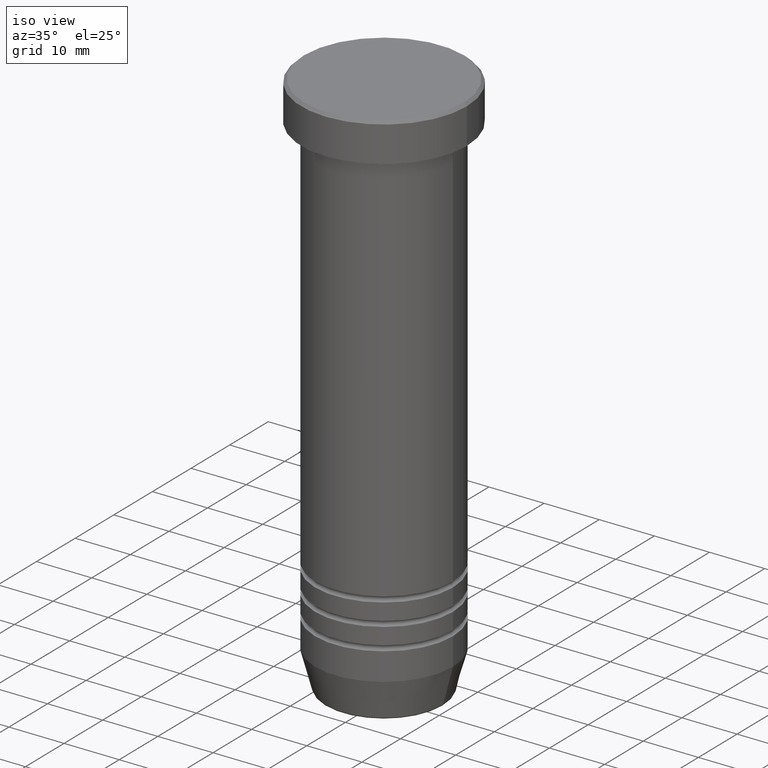
[diagram: clean part render]
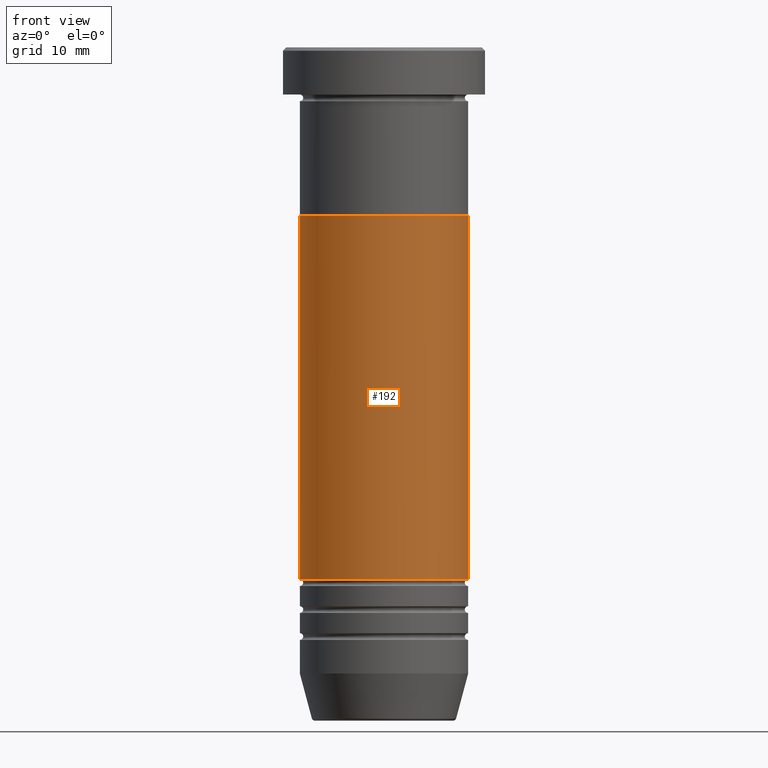
[diagram: tour spotlight — one face highlighted and labeled with its STEP entity id]
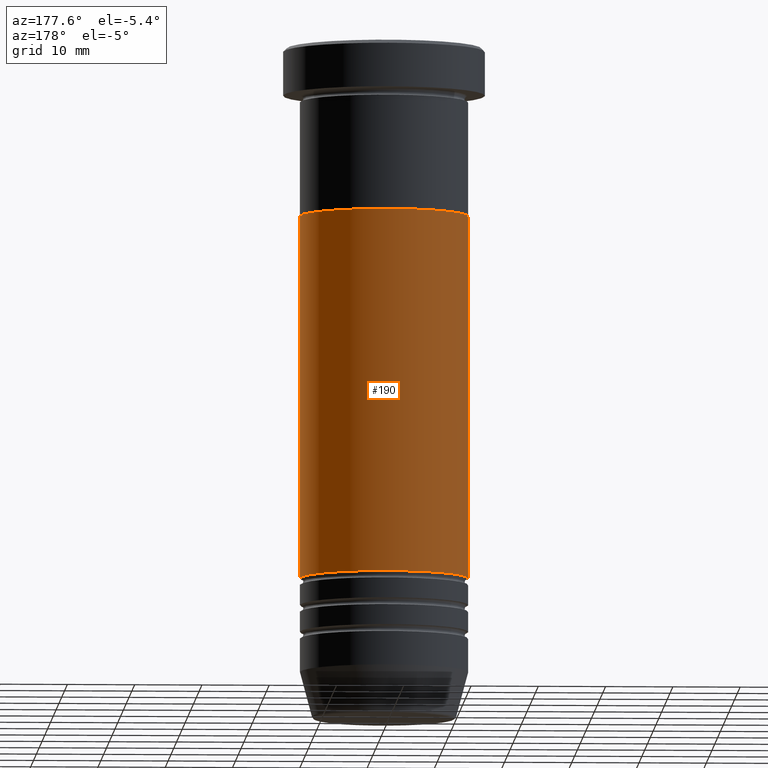
[diagram: tour spotlight — one face highlighted and labeled with its STEP entity id]
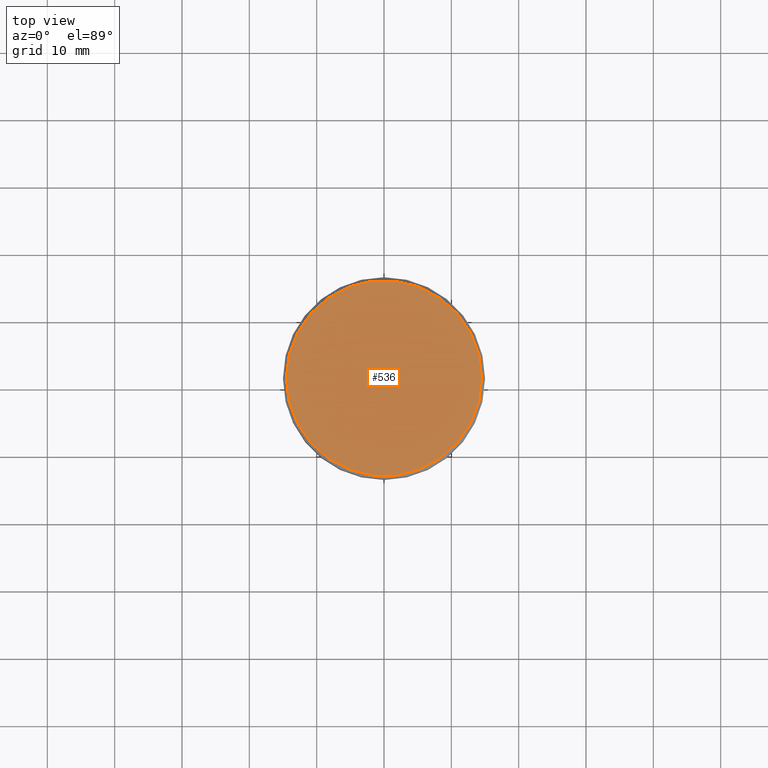
[diagram: tour spotlight — one face highlighted and labeled with its STEP entity id]
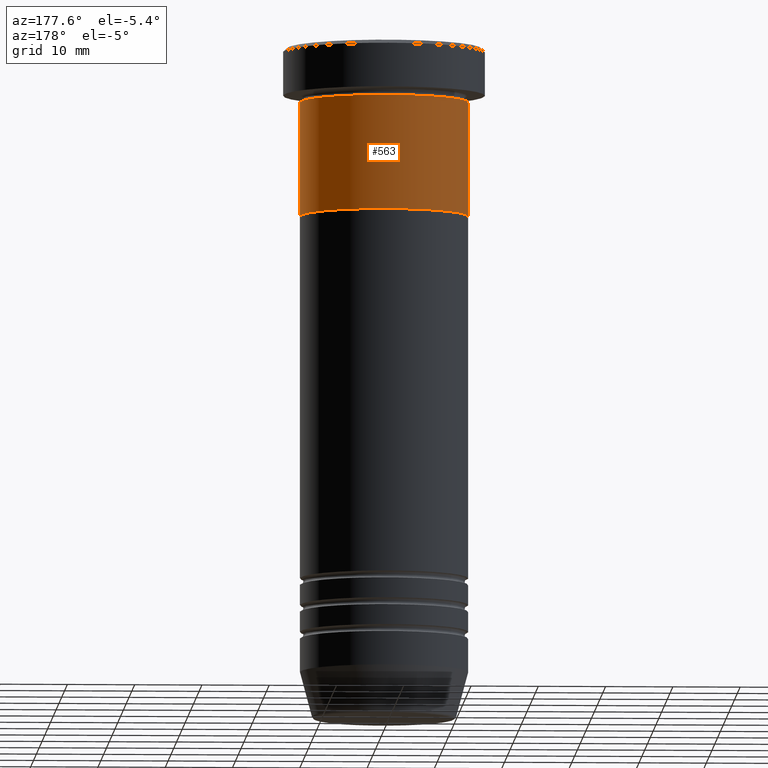
[diagram: tour spotlight — one face highlighted and labeled with its STEP entity id]
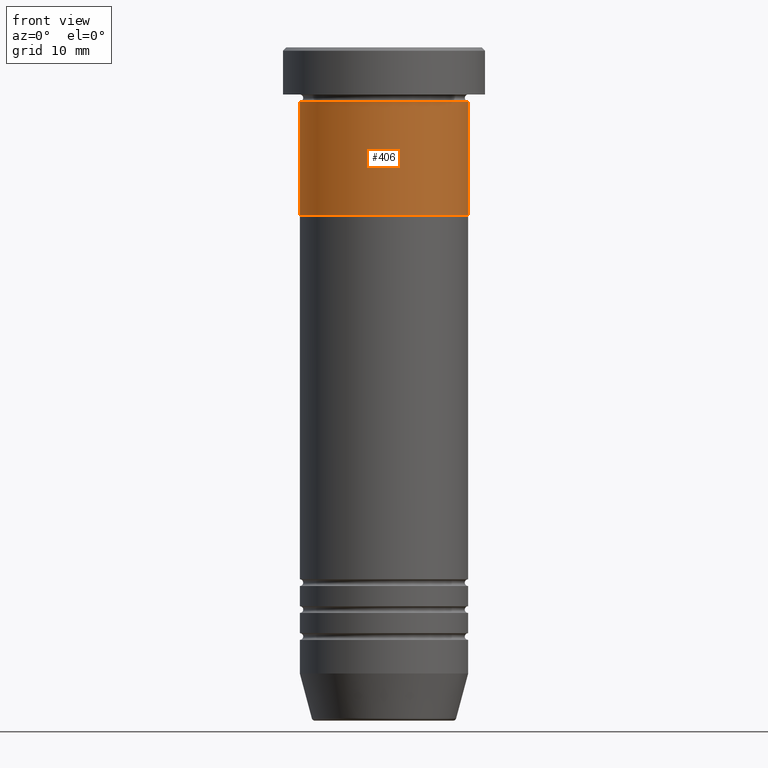
[diagram: tour spotlight — one face highlighted and labeled with its STEP entity id]
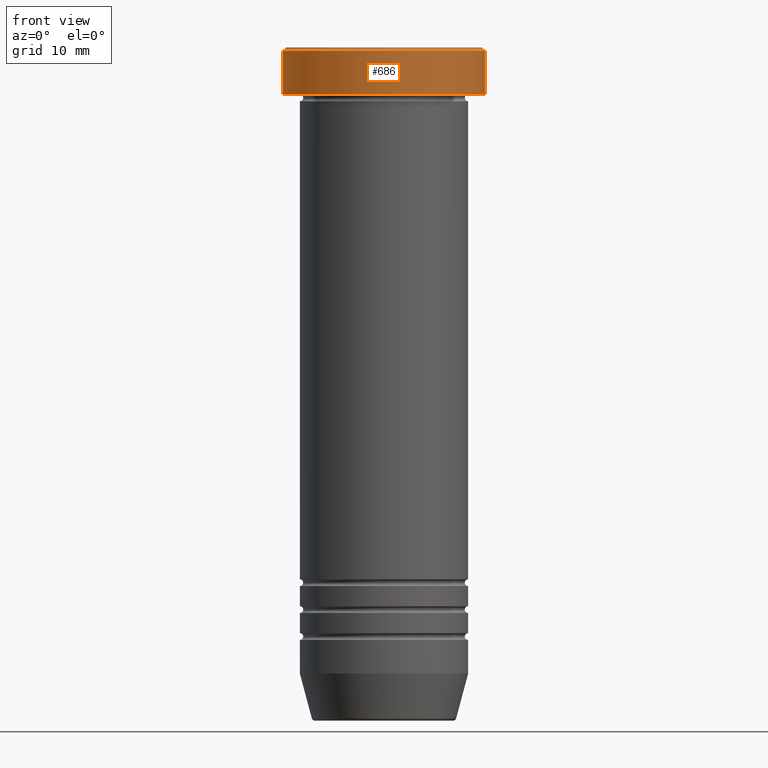
[diagram: tour spotlight — one face highlighted and labeled with its STEP entity id]
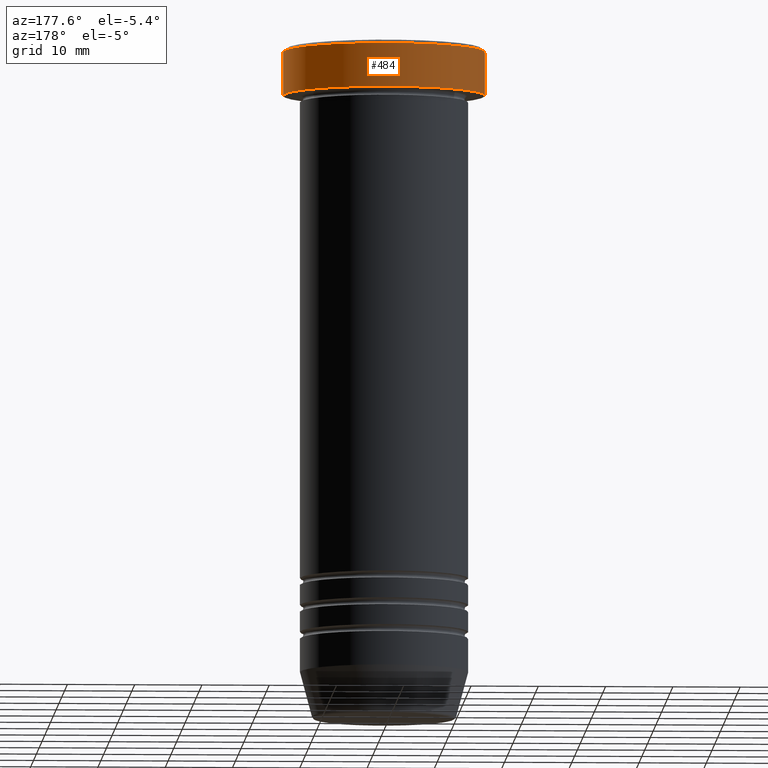
[diagram: tour spotlight — one face highlighted and labeled with its STEP entity id]
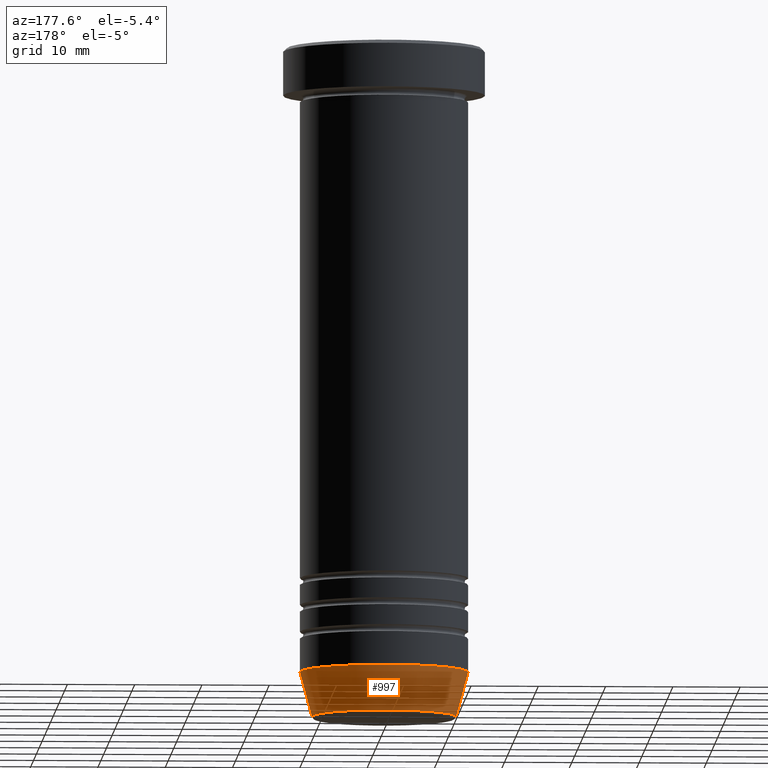
[diagram: tour spotlight — one face highlighted and labeled with its STEP entity id]
A machine part: a face-by-face anatomy tour. The part has 39 B-rep faces; the first image is the clean iso view, then the 8 largest visible faces are spotlighted one at a time (largest first), each with its STEP entity span.

Face 1 — front view, entity #192. In plain terms, the highlighted cylindrical surface (partial cylindrical patch) has radius 12.5 mm, axis along (-0, -0, 1).
Definition (entity closure, byte-faithful):
#16 = CARTESIAN_POINT ( 'NONE',  ( -12.49999999999999645, 1.530808498934191127E-15, 0.000000000000000000 ) ) ;
#29 = CARTESIAN_POINT ( 'NONE',  ( 12.50000000000000000, 0.000000000000000000, -25.00000000000000000 ) ) ;
#44 = VERTEX_POINT ( 'NONE', #85 ) ;
#85 = CARTESIAN_POINT ( 'NONE',  ( -12.49999999999999289, 1.530808498934190930E-15, -79.00000000000000000 ) ) ;
#87 = VERTEX_POINT ( 'NONE', #244 ) ;
#107 = AXIS2_PLACEMENT_3D ( 'NONE', #309, #564, #893 ) ;
#121 = DIRECTION ( 'NONE',  ( -0.000000000000000000, -0.000000000000000000, 1.000000000000000000 ) ) ;
#124 = EDGE_LOOP ( 'NONE', ( #532, #792, #690, #999 ) ) ;
#149 = EDGE_CURVE ( 'NONE', #44, #330, #362, .T. ) ;
#173 = VERTEX_POINT ( 'NONE', #29 ) ;
#192 = ADVANCED_FACE ( 'NONE', ( #602 ), #696, .T. ) ;
#197 = VECTOR ( 'NONE', #1058, 1000.000000000000000 ) ;
#208 = DIRECTION ( 'NONE',  ( 1.000000000000000000, 0.000000000000000000, 0.000000000000000000 ) ) ;
#232 = CARTESIAN_POINT ( 'NONE',  ( 12.49999999999999645, 0.000000000000000000, 0.000000000000000000 ) ) ;
#240 = LINE ( 'NONE', #16, #197 ) ;
#244 = CARTESIAN_POINT ( 'NONE',  ( -12.50000000000000000, 1.530808498934191521E-15, -25.00000000000000000 ) ) ;
#289 = CARTESIAN_POINT ( 'NONE',  ( 0.000000000000000000, 0.000000000000000000, 0.000000000000000000 ) ) ;
#309 = CARTESIAN_POINT ( 'NONE',  ( 0.000000000000000000, 0.000000000000000000, -25.00000000000000000 ) ) ;
#310 = EDGE_CURVE ( 'NONE', #330, #173, #803, .T. ) ;
#330 = VERTEX_POINT ( 'NONE', #1061 ) ;
#347 = EDGE_CURVE ( 'NONE', #87, #173, #470, .T. ) ;
#362 = CIRCLE ( 'NONE', #935, 12.49999999999999289 ) ;
#400 = DIRECTION ( 'NONE',  ( -0.000000000000000000, -0.000000000000000000, 1.000000000000000000 ) ) ;
#437 = CARTESIAN_POINT ( 'NONE',  ( 0.000000000000000000, 0.000000000000000000, -79.00000000000000000 ) ) ;
#465 = EDGE_CURVE ( 'NONE', #44, #87, #240, .T. ) ;
#470 = CIRCLE ( 'NONE', #107, 12.50000000000000000 ) ;
#532 = ORIENTED_EDGE ( 'NONE', *, *, #465, .F. ) ;
#564 = DIRECTION ( 'NONE',  ( -0.000000000000000000, -0.000000000000000000, 1.000000000000000000 ) ) ;
#602 = FACE_OUTER_BOUND ( 'NONE', #124, .T. ) ;
#690 = ORIENTED_EDGE ( 'NONE', *, *, #310, .T. ) ;
#696 = CYLINDRICAL_SURFACE ( 'NONE', #760, 12.49999999999999645 ) ;
#760 = AXIS2_PLACEMENT_3D ( 'NONE', #289, #121, #781 ) ;
#774 = DIRECTION ( 'NONE',  ( -0.000000000000000000, -0.000000000000000000, 1.000000000000000000 ) ) ;
#781 = DIRECTION ( 'NONE',  ( 1.000000000000000000, 0.000000000000000000, 0.000000000000000000 ) ) ;
#792 = ORIENTED_EDGE ( 'NONE', *, *, #149, .T. ) ;
#803 = LINE ( 'NONE', #232, #967 ) ;
#893 = DIRECTION ( 'NONE',  ( 1.000000000000000000, 0.000000000000000000, 0.000000000000000000 ) ) ;
#935 = AXIS2_PLACEMENT_3D ( 'NONE', #437, #774, #208 ) ;
#967 = VECTOR ( 'NONE', #400, 1000.000000000000000 ) ;
#999 = ORIENTED_EDGE ( 'NONE', *, *, #347, .F. ) ;
#1058 = DIRECTION ( 'NONE',  ( -0.000000000000000000, -0.000000000000000000, 1.000000000000000000 ) ) ;
#1061 = CARTESIAN_POINT ( 'NONE',  ( 12.49999999999999289, 0.000000000000000000, -79.00000000000000000 ) ) ;

Face 2 — auxiliary view, entity #190. In plain terms, the highlighted cylindrical surface (partial cylindrical patch) has radius 12.5 mm, axis along (-0, -0, 1).
Definition (entity closure, byte-faithful):
#16 = CARTESIAN_POINT ( 'NONE',  ( -12.49999999999999645, 1.530808498934191127E-15, 0.000000000000000000 ) ) ;
#19 = DIRECTION ( 'NONE',  ( -0.000000000000000000, -0.000000000000000000, 1.000000000000000000 ) ) ;
#29 = CARTESIAN_POINT ( 'NONE',  ( 12.50000000000000000, 0.000000000000000000, -25.00000000000000000 ) ) ;
#44 = VERTEX_POINT ( 'NONE', #85 ) ;
#69 = AXIS2_PLACEMENT_3D ( 'NONE', #305, #203, #352 ) ;
#85 = CARTESIAN_POINT ( 'NONE',  ( -12.49999999999999289, 1.530808498934190930E-15, -79.00000000000000000 ) ) ;
#87 = VERTEX_POINT ( 'NONE', #244 ) ;
#133 = ORIENTED_EDGE ( 'NONE', *, *, #842, .F. ) ;
#162 = CIRCLE ( 'NONE', #762, 12.49999999999999289 ) ;
#173 = VERTEX_POINT ( 'NONE', #29 ) ;
#190 = ADVANCED_FACE ( 'NONE', ( #636 ), #683, .T. ) ;
#197 = VECTOR ( 'NONE', #1058, 1000.000000000000000 ) ;
#203 = DIRECTION ( 'NONE',  ( -0.000000000000000000, -0.000000000000000000, 1.000000000000000000 ) ) ;
#229 = ORIENTED_EDGE ( 'NONE', *, *, #465, .T. ) ;
#232 = CARTESIAN_POINT ( 'NONE',  ( 12.49999999999999645, 0.000000000000000000, 0.000000000000000000 ) ) ;
#240 = LINE ( 'NONE', #16, #197 ) ;
#244 = CARTESIAN_POINT ( 'NONE',  ( -12.50000000000000000, 1.530808498934191521E-15, -25.00000000000000000 ) ) ;
#261 = CARTESIAN_POINT ( 'NONE',  ( 0.000000000000000000, 0.000000000000000000, -25.00000000000000000 ) ) ;
#305 = CARTESIAN_POINT ( 'NONE',  ( 0.000000000000000000, 0.000000000000000000, 0.000000000000000000 ) ) ;
#310 = EDGE_CURVE ( 'NONE', #330, #173, #803, .T. ) ;
#313 = AXIS2_PLACEMENT_3D ( 'NONE', #261, #19, #513 ) ;
#330 = VERTEX_POINT ( 'NONE', #1061 ) ;
#346 = ORIENTED_EDGE ( 'NONE', *, *, #573, .T. ) ;
#352 = DIRECTION ( 'NONE',  ( 1.000000000000000000, 0.000000000000000000, 0.000000000000000000 ) ) ;
#400 = DIRECTION ( 'NONE',  ( -0.000000000000000000, -0.000000000000000000, 1.000000000000000000 ) ) ;
#465 = EDGE_CURVE ( 'NONE', #44, #87, #240, .T. ) ;
#513 = DIRECTION ( 'NONE',  ( 1.000000000000000000, 0.000000000000000000, 0.000000000000000000 ) ) ;
#573 = EDGE_CURVE ( 'NONE', #330, #44, #162, .T. ) ;
#636 = FACE_OUTER_BOUND ( 'NONE', #761, .T. ) ;
#676 = CARTESIAN_POINT ( 'NONE',  ( 0.000000000000000000, 0.000000000000000000, -79.00000000000000000 ) ) ;
#683 = CYLINDRICAL_SURFACE ( 'NONE', #69, 12.49999999999999645 ) ;
#692 = DIRECTION ( 'NONE',  ( 1.000000000000000000, 0.000000000000000000, 0.000000000000000000 ) ) ;
#761 = EDGE_LOOP ( 'NONE', ( #346, #229, #133, #894 ) ) ;
#762 = AXIS2_PLACEMENT_3D ( 'NONE', #676, #1015, #692 ) ;
#778 = CIRCLE ( 'NONE', #313, 12.50000000000000000 ) ;
#803 = LINE ( 'NONE', #232, #967 ) ;
#842 = EDGE_CURVE ( 'NONE', #173, #87, #778, .T. ) ;
#894 = ORIENTED_EDGE ( 'NONE', *, *, #310, .F. ) ;
#967 = VECTOR ( 'NONE', #400, 1000.000000000000000 ) ;
#1015 = DIRECTION ( 'NONE',  ( -0.000000000000000000, -0.000000000000000000, 1.000000000000000000 ) ) ;
#1058 = DIRECTION ( 'NONE',  ( -0.000000000000000000, -0.000000000000000000, 1.000000000000000000 ) ) ;
#1061 = CARTESIAN_POINT ( 'NONE',  ( 12.49999999999999289, 0.000000000000000000, -79.00000000000000000 ) ) ;

Face 3 — top view, entity #536. In plain terms, the highlighted planar face has unit normal (0, -0, 1).
Definition (entity closure, byte-faithful):
#5 = CARTESIAN_POINT ( 'NONE',  ( 0.000000000000000000, 0.000000000000000000, 0.000000000000000000 ) ) ;
#31 = FACE_OUTER_BOUND ( 'NONE', #259, .T. ) ;
#35 = ORIENTED_EDGE ( 'NONE', *, *, #1017, .T. ) ;
#93 = DIRECTION ( 'NONE',  ( 1.000000000000000000, 0.000000000000000000, 0.000000000000000000 ) ) ;
#104 = CARTESIAN_POINT ( 'NONE',  ( 0.000000000000000000, 0.000000000000000000, 0.000000000000000000 ) ) ;
#112 = CARTESIAN_POINT ( 'NONE',  ( 14.49999999999999645, 1.806354028742345802E-15, 0.000000000000000000 ) ) ;
#245 = CARTESIAN_POINT ( 'NONE',  ( -14.49999999999999645, 0.000000000000000000, 0.000000000000000000 ) ) ;
#259 = EDGE_LOOP ( 'NONE', ( #443, #35 ) ) ;
#353 = CARTESIAN_POINT ( 'NONE',  ( 0.000000000000000000, 0.000000000000000000, 0.000000000000000000 ) ) ;
#370 = AXIS2_PLACEMENT_3D ( 'NONE', #5, #909, #808 ) ;
#417 = AXIS2_PLACEMENT_3D ( 'NONE', #353, #442, #93 ) ;
#442 = DIRECTION ( 'NONE',  ( 0.000000000000000000, -0.000000000000000000, 1.000000000000000000 ) ) ;
#443 = ORIENTED_EDGE ( 'NONE', *, *, #827, .T. ) ;
#500 = VERTEX_POINT ( 'NONE', #245 ) ;
#510 = CIRCLE ( 'NONE', #710, 14.49999999999999645 ) ;
#515 = VERTEX_POINT ( 'NONE', #112 ) ;
#536 = ADVANCED_FACE ( 'NONE', ( #31 ), #921, .T. ) ;
#710 = AXIS2_PLACEMENT_3D ( 'NONE', #104, #914, #765 ) ;
#765 = DIRECTION ( 'NONE',  ( 1.000000000000000000, 0.000000000000000000, 0.000000000000000000 ) ) ;
#808 = DIRECTION ( 'NONE',  ( 1.000000000000000000, 0.000000000000000000, 0.000000000000000000 ) ) ;
#827 = EDGE_CURVE ( 'NONE', #500, #515, #510, .T. ) ;
#909 = DIRECTION ( 'NONE',  ( -0.000000000000000000, -0.000000000000000000, 1.000000000000000000 ) ) ;
#914 = DIRECTION ( 'NONE',  ( -0.000000000000000000, -0.000000000000000000, 1.000000000000000000 ) ) ;
#921 = PLANE ( 'NONE',  #417 ) ;
#940 = CIRCLE ( 'NONE', #370, 14.49999999999999645 ) ;
#1017 = EDGE_CURVE ( 'NONE', #515, #500, #940, .T. ) ;

Face 4 — auxiliary view, entity #563. In plain terms, the highlighted cylindrical surface (partial cylindrical patch) has radius 12.5 mm, axis along (-0, -0, 1).
Definition (entity closure, byte-faithful):
#32 = AXIS2_PLACEMENT_3D ( 'NONE', #522, #679, #689 ) ;
#65 = CARTESIAN_POINT ( 'NONE',  ( -12.50000000000000000, 1.530808498934191521E-15, -25.00000000000000000 ) ) ;
#102 = EDGE_LOOP ( 'NONE', ( #665, #311, #303, #397 ) ) ;
#144 = CIRCLE ( 'NONE', #547, 12.50000000000000000 ) ;
#146 = CARTESIAN_POINT ( 'NONE',  ( -12.50000000000000000, 1.530808498934191521E-15, -8.000000000000000000 ) ) ;
#178 = EDGE_CURVE ( 'NONE', #268, #715, #271, .T. ) ;
#194 = FACE_OUTER_BOUND ( 'NONE', #102, .T. ) ;
#207 = DIRECTION ( 'NONE',  ( 1.000000000000000000, 0.000000000000000000, 0.000000000000000000 ) ) ;
#231 = VECTOR ( 'NONE', #469, 1000.000000000000000 ) ;
#268 = VERTEX_POINT ( 'NONE', #65 ) ;
#271 = LINE ( 'NONE', #441, #331 ) ;
#281 = CARTESIAN_POINT ( 'NONE',  ( 0.000000000000000000, 0.000000000000000000, -8.000000000000000000 ) ) ;
#303 = ORIENTED_EDGE ( 'NONE', *, *, #954, .F. ) ;
#311 = ORIENTED_EDGE ( 'NONE', *, *, #178, .T. ) ;
#331 = VECTOR ( 'NONE', #886, 1000.000000000000000 ) ;
#361 = DIRECTION ( 'NONE',  ( -0.000000000000000000, -0.000000000000000000, 1.000000000000000000 ) ) ;
#397 = ORIENTED_EDGE ( 'NONE', *, *, #606, .F. ) ;
#410 = VERTEX_POINT ( 'NONE', #457 ) ;
#431 = CYLINDRICAL_SURFACE ( 'NONE', #32, 12.50000000000000000 ) ;
#441 = CARTESIAN_POINT ( 'NONE',  ( -12.50000000000000000, 1.530808498934191521E-15, 0.000000000000000000 ) ) ;
#457 = CARTESIAN_POINT ( 'NONE',  ( 12.50000000000000000, 0.000000000000000000, -25.00000000000000000 ) ) ;
#467 = DIRECTION ( 'NONE',  ( -0.000000000000000000, -0.000000000000000000, 1.000000000000000000 ) ) ;
#469 = DIRECTION ( 'NONE',  ( -0.000000000000000000, -0.000000000000000000, 1.000000000000000000 ) ) ;
#522 = CARTESIAN_POINT ( 'NONE',  ( 0.000000000000000000, 0.000000000000000000, 0.000000000000000000 ) ) ;
#537 = EDGE_CURVE ( 'NONE', #410, #268, #831, .T. ) ;
#544 = CARTESIAN_POINT ( 'NONE',  ( 12.50000000000000000, 0.000000000000000000, 0.000000000000000000 ) ) ;
#547 = AXIS2_PLACEMENT_3D ( 'NONE', #281, #467, #207 ) ;
#563 = ADVANCED_FACE ( 'NONE', ( #194 ), #431, .T. ) ;
#590 = LINE ( 'NONE', #544, #231 ) ;
#606 = EDGE_CURVE ( 'NONE', #410, #991, #590, .T. ) ;
#665 = ORIENTED_EDGE ( 'NONE', *, *, #537, .T. ) ;
#679 = DIRECTION ( 'NONE',  ( -0.000000000000000000, -0.000000000000000000, 1.000000000000000000 ) ) ;
#689 = DIRECTION ( 'NONE',  ( 1.000000000000000000, 0.000000000000000000, 0.000000000000000000 ) ) ;
#715 = VERTEX_POINT ( 'NONE', #146 ) ;
#749 = CARTESIAN_POINT ( 'NONE',  ( 0.000000000000000000, 0.000000000000000000, -25.00000000000000000 ) ) ;
#831 = CIRCLE ( 'NONE', #1038, 12.50000000000000000 ) ;
#886 = DIRECTION ( 'NONE',  ( -0.000000000000000000, -0.000000000000000000, 1.000000000000000000 ) ) ;
#954 = EDGE_CURVE ( 'NONE', #991, #715, #144, .T. ) ;
#958 = CARTESIAN_POINT ( 'NONE',  ( 12.50000000000000000, 0.000000000000000000, -8.000000000000000000 ) ) ;
#991 = VERTEX_POINT ( 'NONE', #958 ) ;
#1011 = DIRECTION ( 'NONE',  ( 1.000000000000000000, 0.000000000000000000, 0.000000000000000000 ) ) ;
#1038 = AXIS2_PLACEMENT_3D ( 'NONE', #749, #361, #1011 ) ;

Face 5 — front view, entity #406. In plain terms, the highlighted cylindrical surface (partial cylindrical patch) has radius 12.5 mm, axis along (-0, -0, 1).
Definition (entity closure, byte-faithful):
#46 = CIRCLE ( 'NONE', #143, 12.50000000000000000 ) ;
#65 = CARTESIAN_POINT ( 'NONE',  ( -12.50000000000000000, 1.530808498934191521E-15, -25.00000000000000000 ) ) ;
#132 = ORIENTED_EDGE ( 'NONE', *, *, #883, .T. ) ;
#143 = AXIS2_PLACEMENT_3D ( 'NONE', #235, #485, #157 ) ;
#146 = CARTESIAN_POINT ( 'NONE',  ( -12.50000000000000000, 1.530808498934191521E-15, -8.000000000000000000 ) ) ;
#157 = DIRECTION ( 'NONE',  ( 1.000000000000000000, 0.000000000000000000, 0.000000000000000000 ) ) ;
#178 = EDGE_CURVE ( 'NONE', #268, #715, #271, .T. ) ;
#231 = VECTOR ( 'NONE', #469, 1000.000000000000000 ) ;
#235 = CARTESIAN_POINT ( 'NONE',  ( 0.000000000000000000, 0.000000000000000000, -8.000000000000000000 ) ) ;
#268 = VERTEX_POINT ( 'NONE', #65 ) ;
#271 = LINE ( 'NONE', #441, #331 ) ;
#275 = DIRECTION ( 'NONE',  ( 1.000000000000000000, 0.000000000000000000, 0.000000000000000000 ) ) ;
#331 = VECTOR ( 'NONE', #886, 1000.000000000000000 ) ;
#354 = EDGE_LOOP ( 'NONE', ( #947, #132, #507, #672 ) ) ;
#406 = ADVANCED_FACE ( 'NONE', ( #633 ), #784, .T. ) ;
#410 = VERTEX_POINT ( 'NONE', #457 ) ;
#441 = CARTESIAN_POINT ( 'NONE',  ( -12.50000000000000000, 1.530808498934191521E-15, 0.000000000000000000 ) ) ;
#457 = CARTESIAN_POINT ( 'NONE',  ( 12.50000000000000000, 0.000000000000000000, -25.00000000000000000 ) ) ;
#469 = DIRECTION ( 'NONE',  ( -0.000000000000000000, -0.000000000000000000, 1.000000000000000000 ) ) ;
#472 = AXIS2_PLACEMENT_3D ( 'NONE', #1001, #528, #858 ) ;
#485 = DIRECTION ( 'NONE',  ( -0.000000000000000000, -0.000000000000000000, 1.000000000000000000 ) ) ;
#507 = ORIENTED_EDGE ( 'NONE', *, *, #606, .T. ) ;
#528 = DIRECTION ( 'NONE',  ( -0.000000000000000000, -0.000000000000000000, 1.000000000000000000 ) ) ;
#544 = CARTESIAN_POINT ( 'NONE',  ( 12.50000000000000000, 0.000000000000000000, 0.000000000000000000 ) ) ;
#590 = LINE ( 'NONE', #544, #231 ) ;
#606 = EDGE_CURVE ( 'NONE', #410, #991, #590, .T. ) ;
#626 = DIRECTION ( 'NONE',  ( -0.000000000000000000, -0.000000000000000000, 1.000000000000000000 ) ) ;
#633 = FACE_OUTER_BOUND ( 'NONE', #354, .T. ) ;
#672 = ORIENTED_EDGE ( 'NONE', *, *, #746, .F. ) ;
#715 = VERTEX_POINT ( 'NONE', #146 ) ;
#741 = AXIS2_PLACEMENT_3D ( 'NONE', #884, #626, #275 ) ;
#746 = EDGE_CURVE ( 'NONE', #715, #991, #46, .T. ) ;
#784 = CYLINDRICAL_SURFACE ( 'NONE', #741, 12.50000000000000000 ) ;
#858 = DIRECTION ( 'NONE',  ( 1.000000000000000000, 0.000000000000000000, 0.000000000000000000 ) ) ;
#883 = EDGE_CURVE ( 'NONE', #268, #410, #939, .T. ) ;
#884 = CARTESIAN_POINT ( 'NONE',  ( 0.000000000000000000, 0.000000000000000000, 0.000000000000000000 ) ) ;
#886 = DIRECTION ( 'NONE',  ( -0.000000000000000000, -0.000000000000000000, 1.000000000000000000 ) ) ;
#939 = CIRCLE ( 'NONE', #472, 12.50000000000000000 ) ;
#947 = ORIENTED_EDGE ( 'NONE', *, *, #178, .F. ) ;
#958 = CARTESIAN_POINT ( 'NONE',  ( 12.50000000000000000, 0.000000000000000000, -8.000000000000000000 ) ) ;
#991 = VERTEX_POINT ( 'NONE', #958 ) ;
#1001 = CARTESIAN_POINT ( 'NONE',  ( 0.000000000000000000, 0.000000000000000000, -25.00000000000000000 ) ) ;

Face 6 — front view, entity #686. In plain terms, the highlighted cylindrical surface (partial cylindrical patch) has radius 15 mm, axis along (-0, -0, 1).
Definition (entity closure, byte-faithful):
#2 = CARTESIAN_POINT ( 'NONE',  ( 15.00000000000000000, 0.000000000000000000, -0.5000000000000038858 ) ) ;
#42 = CARTESIAN_POINT ( 'NONE',  ( 0.000000000000000000, 0.000000000000000000, 0.000000000000000000 ) ) ;
#55 = VECTOR ( 'NONE', #945, 1000.000000000000000 ) ;
#66 = DIRECTION ( 'NONE',  ( 0.000000000000000000, 0.000000000000000000, -1.000000000000000000 ) ) ;
#130 = EDGE_CURVE ( 'NONE', #966, #750, #619, .T. ) ;
#136 = CYLINDRICAL_SURFACE ( 'NONE', #368, 15.00000000000000000 ) ;
#163 = DIRECTION ( 'NONE',  ( 1.000000000000000000, 0.000000000000000000, 0.000000000000000000 ) ) ;
#185 = AXIS2_PLACEMENT_3D ( 'NONE', #1033, #875, #1016 ) ;
#252 = CIRCLE ( 'NONE', #185, 15.00000000000000000 ) ;
#295 = DIRECTION ( 'NONE',  ( 1.000000000000000000, 0.000000000000000000, 0.000000000000000000 ) ) ;
#316 = CARTESIAN_POINT ( 'NONE',  ( -15.00000000000000000, 1.836970198721029589E-15, 0.000000000000000000 ) ) ;
#318 = EDGE_LOOP ( 'NONE', ( #571, #1048, #716, #806 ) ) ;
#329 = CARTESIAN_POINT ( 'NONE',  ( -15.00000000000000000, 1.836970198721029589E-15, -0.5000000000000038858 ) ) ;
#368 = AXIS2_PLACEMENT_3D ( 'NONE', #42, #964, #295 ) ;
#401 = CIRCLE ( 'NONE', #780, 15.00000000000000000 ) ;
#478 = VERTEX_POINT ( 'NONE', #329 ) ;
#493 = LINE ( 'NONE', #316, #727 ) ;
#521 = CARTESIAN_POINT ( 'NONE',  ( 15.00000000000000000, 0.000000000000000000, 0.000000000000000000 ) ) ;
#571 = ORIENTED_EDGE ( 'NONE', *, *, #726, .F. ) ;
#619 = LINE ( 'NONE', #521, #55 ) ;
#656 = CARTESIAN_POINT ( 'NONE',  ( -15.00000000000000000, 1.836970198721029589E-15, -6.999999999999998224 ) ) ;
#686 = ADVANCED_FACE ( 'NONE', ( #714 ), #136, .T. ) ;
#714 = FACE_OUTER_BOUND ( 'NONE', #318, .T. ) ;
#716 = ORIENTED_EDGE ( 'NONE', *, *, #130, .T. ) ;
#726 = EDGE_CURVE ( 'NONE', #772, #478, #493, .T. ) ;
#727 = VECTOR ( 'NONE', #731, 1000.000000000000000 ) ;
#731 = DIRECTION ( 'NONE',  ( -0.000000000000000000, -0.000000000000000000, 1.000000000000000000 ) ) ;
#750 = VERTEX_POINT ( 'NONE', #2 ) ;
#772 = VERTEX_POINT ( 'NONE', #656 ) ;
#780 = AXIS2_PLACEMENT_3D ( 'NONE', #804, #66, #163 ) ;
#786 = CARTESIAN_POINT ( 'NONE',  ( 15.00000000000000000, 0.000000000000000000, -6.999999999999998224 ) ) ;
#804 = CARTESIAN_POINT ( 'NONE',  ( 0.000000000000000000, 0.000000000000000000, -0.5000000000000038858 ) ) ;
#806 = ORIENTED_EDGE ( 'NONE', *, *, #1051, .T. ) ;
#875 = DIRECTION ( 'NONE',  ( -0.000000000000000000, -0.000000000000000000, 1.000000000000000000 ) ) ;
#945 = DIRECTION ( 'NONE',  ( -0.000000000000000000, -0.000000000000000000, 1.000000000000000000 ) ) ;
#948 = EDGE_CURVE ( 'NONE', #772, #966, #252, .T. ) ;
#964 = DIRECTION ( 'NONE',  ( -0.000000000000000000, -0.000000000000000000, 1.000000000000000000 ) ) ;
#966 = VERTEX_POINT ( 'NONE', #786 ) ;
#1016 = DIRECTION ( 'NONE',  ( 1.000000000000000000, 0.000000000000000000, 0.000000000000000000 ) ) ;
#1033 = CARTESIAN_POINT ( 'NONE',  ( 0.000000000000000000, 0.000000000000000000, -6.999999999999998224 ) ) ;
#1048 = ORIENTED_EDGE ( 'NONE', *, *, #948, .T. ) ;
#1051 = EDGE_CURVE ( 'NONE', #750, #478, #401, .T. ) ;

Face 7 — auxiliary view, entity #484. In plain terms, the highlighted cylindrical surface (partial cylindrical patch) has radius 15 mm, axis along (-0, -0, 1).
Definition (entity closure, byte-faithful):
#2 = CARTESIAN_POINT ( 'NONE',  ( 15.00000000000000000, 0.000000000000000000, -0.5000000000000038858 ) ) ;
#21 = CARTESIAN_POINT ( 'NONE',  ( 0.000000000000000000, 0.000000000000000000, -0.5000000000000038858 ) ) ;
#43 = CIRCLE ( 'NONE', #296, 15.00000000000000000 ) ;
#48 = EDGE_CURVE ( 'NONE', #478, #750, #920, .T. ) ;
#55 = VECTOR ( 'NONE', #945, 1000.000000000000000 ) ;
#130 = EDGE_CURVE ( 'NONE', #966, #750, #619, .T. ) ;
#140 = ORIENTED_EDGE ( 'NONE', *, *, #237, .T. ) ;
#148 = ORIENTED_EDGE ( 'NONE', *, *, #726, .T. ) ;
#237 = EDGE_CURVE ( 'NONE', #966, #772, #43, .T. ) ;
#254 = CARTESIAN_POINT ( 'NONE',  ( 0.000000000000000000, 0.000000000000000000, 0.000000000000000000 ) ) ;
#255 = ORIENTED_EDGE ( 'NONE', *, *, #48, .T. ) ;
#296 = AXIS2_PLACEMENT_3D ( 'NONE', #357, #641, #497 ) ;
#316 = CARTESIAN_POINT ( 'NONE',  ( -15.00000000000000000, 1.836970198721029589E-15, 0.000000000000000000 ) ) ;
#317 = FACE_OUTER_BOUND ( 'NONE', #625, .T. ) ;
#329 = CARTESIAN_POINT ( 'NONE',  ( -15.00000000000000000, 1.836970198721029589E-15, -0.5000000000000038858 ) ) ;
#357 = CARTESIAN_POINT ( 'NONE',  ( 0.000000000000000000, 0.000000000000000000, -6.999999999999998224 ) ) ;
#398 = AXIS2_PLACEMENT_3D ( 'NONE', #254, #570, #899 ) ;
#449 = AXIS2_PLACEMENT_3D ( 'NONE', #21, #574, #838 ) ;
#478 = VERTEX_POINT ( 'NONE', #329 ) ;
#484 = ADVANCED_FACE ( 'NONE', ( #317 ), #975, .T. ) ;
#493 = LINE ( 'NONE', #316, #727 ) ;
#497 = DIRECTION ( 'NONE',  ( 1.000000000000000000, 0.000000000000000000, 0.000000000000000000 ) ) ;
#521 = CARTESIAN_POINT ( 'NONE',  ( 15.00000000000000000, 0.000000000000000000, 0.000000000000000000 ) ) ;
#570 = DIRECTION ( 'NONE',  ( -0.000000000000000000, -0.000000000000000000, 1.000000000000000000 ) ) ;
#574 = DIRECTION ( 'NONE',  ( 0.000000000000000000, 0.000000000000000000, -1.000000000000000000 ) ) ;
#609 = ORIENTED_EDGE ( 'NONE', *, *, #130, .F. ) ;
#619 = LINE ( 'NONE', #521, #55 ) ;
#625 = EDGE_LOOP ( 'NONE', ( #140, #148, #255, #609 ) ) ;
#641 = DIRECTION ( 'NONE',  ( -0.000000000000000000, -0.000000000000000000, 1.000000000000000000 ) ) ;
#656 = CARTESIAN_POINT ( 'NONE',  ( -15.00000000000000000, 1.836970198721029589E-15, -6.999999999999998224 ) ) ;
#726 = EDGE_CURVE ( 'NONE', #772, #478, #493, .T. ) ;
#727 = VECTOR ( 'NONE', #731, 1000.000000000000000 ) ;
#731 = DIRECTION ( 'NONE',  ( -0.000000000000000000, -0.000000000000000000, 1.000000000000000000 ) ) ;
#750 = VERTEX_POINT ( 'NONE', #2 ) ;
#772 = VERTEX_POINT ( 'NONE', #656 ) ;
#786 = CARTESIAN_POINT ( 'NONE',  ( 15.00000000000000000, 0.000000000000000000, -6.999999999999998224 ) ) ;
#838 = DIRECTION ( 'NONE',  ( 1.000000000000000000, 0.000000000000000000, 0.000000000000000000 ) ) ;
#899 = DIRECTION ( 'NONE',  ( 1.000000000000000000, 0.000000000000000000, 0.000000000000000000 ) ) ;
#920 = CIRCLE ( 'NONE', #449, 15.00000000000000000 ) ;
#945 = DIRECTION ( 'NONE',  ( -0.000000000000000000, -0.000000000000000000, 1.000000000000000000 ) ) ;
#966 = VERTEX_POINT ( 'NONE', #786 ) ;
#975 = CYLINDRICAL_SURFACE ( 'NONE', #398, 15.00000000000000000 ) ;

Face 8 — auxiliary view, entity #997. In plain terms, the highlighted conical surface has half-angle 15 deg.
Definition (entity closure, byte-faithful):
#24 = VERTEX_POINT ( 'NONE', #1002 ) ;
#154 = VERTEX_POINT ( 'NONE', #365 ) ;
#159 = LINE ( 'NONE', #816, #182 ) ;
#182 = VECTOR ( 'NONE', #980, 1000.000000000000000 ) ;
#209 = EDGE_LOOP ( 'NONE', ( #768, #610, #332, #788 ) ) ;
#217 = CARTESIAN_POINT ( 'NONE',  ( 0.000000000000000000, 0.000000000000000000, -99.99999999999998579 ) ) ;
#285 = VECTOR ( 'NONE', #393, 1000.000000000000000 ) ;
#286 = VERTEX_POINT ( 'NONE', #824 ) ;
#332 = ORIENTED_EDGE ( 'NONE', *, *, #707, .F. ) ;
#365 = CARTESIAN_POINT ( 'NONE',  ( 10.72365507213718772, 0.000000000000000000, -99.62940952255125637 ) ) ;
#367 = DIRECTION ( 'NONE',  ( -0.000000000000000000, -0.000000000000000000, 1.000000000000000000 ) ) ;
#372 = DIRECTION ( 'NONE',  ( 1.000000000000000000, 0.000000000000000000, 0.000000000000000000 ) ) ;
#389 = DIRECTION ( 'NONE',  ( -1.000000000000000000, 0.000000000000000000, 0.000000000000000000 ) ) ;
#393 = DIRECTION ( 'NONE',  ( -0.2588190451025213501, 3.169619151431772337E-17, 0.9659258262890680902 ) ) ;
#403 = LINE ( 'NONE', #1056, #285 ) ;
#419 = CIRCLE ( 'NONE', #560, 10.72365507213718772 ) ;
#445 = DIRECTION ( 'NONE',  ( -0.000000000000000000, -0.000000000000000000, 1.000000000000000000 ) ) ;
#447 = CARTESIAN_POINT ( 'NONE',  ( 0.000000000000000000, 0.000000000000000000, -93.00000000000000000 ) ) ;
#495 = EDGE_CURVE ( 'NONE', #154, #24, #159, .T. ) ;
#538 = FACE_OUTER_BOUND ( 'NONE', #209, .T. ) ;
#560 = AXIS2_PLACEMENT_3D ( 'NONE', #881, #445, #389 ) ;
#578 = CIRCLE ( 'NONE', #955, 12.50000000000000000 ) ;
#610 = ORIENTED_EDGE ( 'NONE', *, *, #721, .T. ) ;
#667 = CONICAL_SURFACE ( 'NONE', #669, 10.62435565298213902, 0.2617993877991500740 ) ;
#669 = AXIS2_PLACEMENT_3D ( 'NONE', #217, #773, #372 ) ;
#695 = CARTESIAN_POINT ( 'NONE',  ( -12.50000000000000000, 1.530808498934191521E-15, -93.00000000000000000 ) ) ;
#707 = EDGE_CURVE ( 'NONE', #24, #960, #578, .T. ) ;
#721 = EDGE_CURVE ( 'NONE', #286, #960, #403, .T. ) ;
#768 = ORIENTED_EDGE ( 'NONE', *, *, #911, .T. ) ;
#773 = DIRECTION ( 'NONE',  ( -0.000000000000000000, -0.000000000000000000, 1.000000000000000000 ) ) ;
#782 = DIRECTION ( 'NONE',  ( 1.000000000000000000, 0.000000000000000000, 0.000000000000000000 ) ) ;
#788 = ORIENTED_EDGE ( 'NONE', *, *, #495, .F. ) ;
#816 = CARTESIAN_POINT ( 'NONE',  ( 10.62435565298213902, 0.000000000000000000, -99.99999999999998579 ) ) ;
#824 = CARTESIAN_POINT ( 'NONE',  ( -10.72365507213718772, 1.422038742429750121E-15, -99.62940952255125637 ) ) ;
#881 = CARTESIAN_POINT ( 'NONE',  ( 0.000000000000000000, 0.000000000000000000, -99.62940952255125637 ) ) ;
#911 = EDGE_CURVE ( 'NONE', #154, #286, #419, .T. ) ;
#955 = AXIS2_PLACEMENT_3D ( 'NONE', #447, #367, #782 ) ;
#960 = VERTEX_POINT ( 'NONE', #695 ) ;
#980 = DIRECTION ( 'NONE',  ( 0.2588190451025213501, 0.000000000000000000, 0.9659258262890680902 ) ) ;
#997 = ADVANCED_FACE ( 'NONE', ( #538 ), #667, .T. ) ;
#1002 = CARTESIAN_POINT ( 'NONE',  ( 12.50000000000000000, 0.000000000000000000, -93.00000000000000000 ) ) ;
#1056 = CARTESIAN_POINT ( 'NONE',  ( -10.62435565298213902, 1.301108314342766318E-15, -99.99999999999998579 ) ) ;